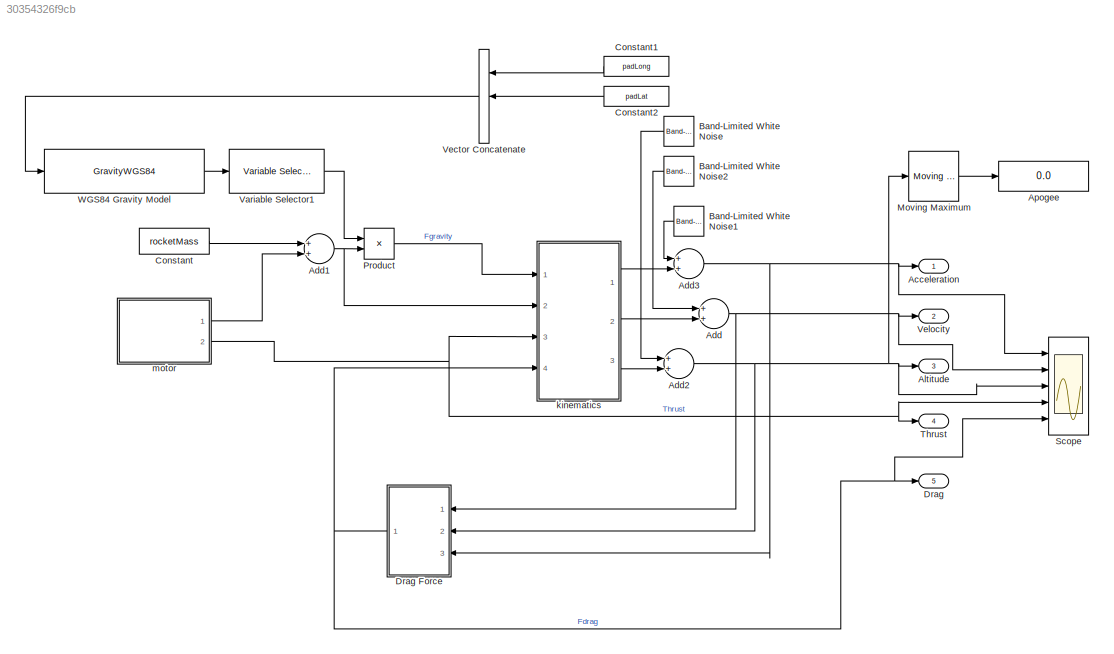
MODEL slx_30354326f9cb
KIND model
CONFIG AbsTol = auto
CONFIG EnableMultiTasking = off
CONFIG FixedStep = .0001
CONFIG MaxStep = auto
CONFIG MinStep = auto
CONFIG RelTol = 1e-3
CONFIG SampleTimeConstraint = Unconstrained
CONFIG Solver = ode4
CONFIG SolverName = ode4
CONFIG StartTime = 0.0
CONFIG StopTime = 20
BLOCK [Outport] Acceleration
  IconDisplay = Port number
BLOCK [Sum] Add
  InputSameDT = off
  OutDataTypeStr = Inherit: Inherit via internal rule
  Ports = [2, 1]
  SaturateOnIntegerOverflow = off
BLOCK [Sum] Add1
  InputSameDT = off
  OutDataTypeStr = Inherit: Inherit via internal rule
  Ports = [2, 1]
  SaturateOnIntegerOverflow = off
BLOCK [Sum] Add2
  InputSameDT = off
  OutDataTypeStr = Inherit: Inherit via internal rule
  Ports = [2, 1]
  SaturateOnIntegerOverflow = off
BLOCK [Sum] Add3
  InputSameDT = off
  OutDataTypeStr = Inherit: Inherit via internal rule
  Ports = [2, 1]
  SaturateOnIntegerOverflow = off
BLOCK [Outport] Altitude
  IconDisplay = Port number
  Port = 3
BLOCK [Display] Apogee
  Decimation = 1
  Format = long
  Ports = [1]
BLOCK [Reference] Band-Limited White Noise  REF=simulink/Sources/Band-Limited
White Noise
  Ports = [0, 1]
  SourceBlock = simulink/Sources/Band-Limited\nWhite Noise
  SourceProductBaseCode = SL
  SourceProductName = Simulink
  SourceType = Band-Limited White Noise.
BLOCK [Reference] Band-Limited White Noise1  REF=simulink/Sources/Band-Limited
White Noise
  Ports = [0, 1]
  SourceBlock = simulink/Sources/Band-Limited\nWhite Noise
  SourceProductBaseCode = SL
  SourceProductName = Simulink
  SourceType = Band-Limited White Noise.
BLOCK [Reference] Band-Limited White Noise2  REF=simulink/Sources/Band-Limited
White Noise
  Ports = [0, 1]
  SourceBlock = simulink/Sources/Band-Limited\nWhite Noise
  SourceProductBaseCode = SL
  SourceProductName = Simulink
  SourceType = Band-Limited White Noise.
BLOCK [Constant] Constant
  Value = rocketMass
BLOCK [Constant] Constant1
  Value = padLong
BLOCK [Constant] Constant2
  Value = padLat
BLOCK [Outport] Drag
  IconDisplay = Port number
  Port = 5
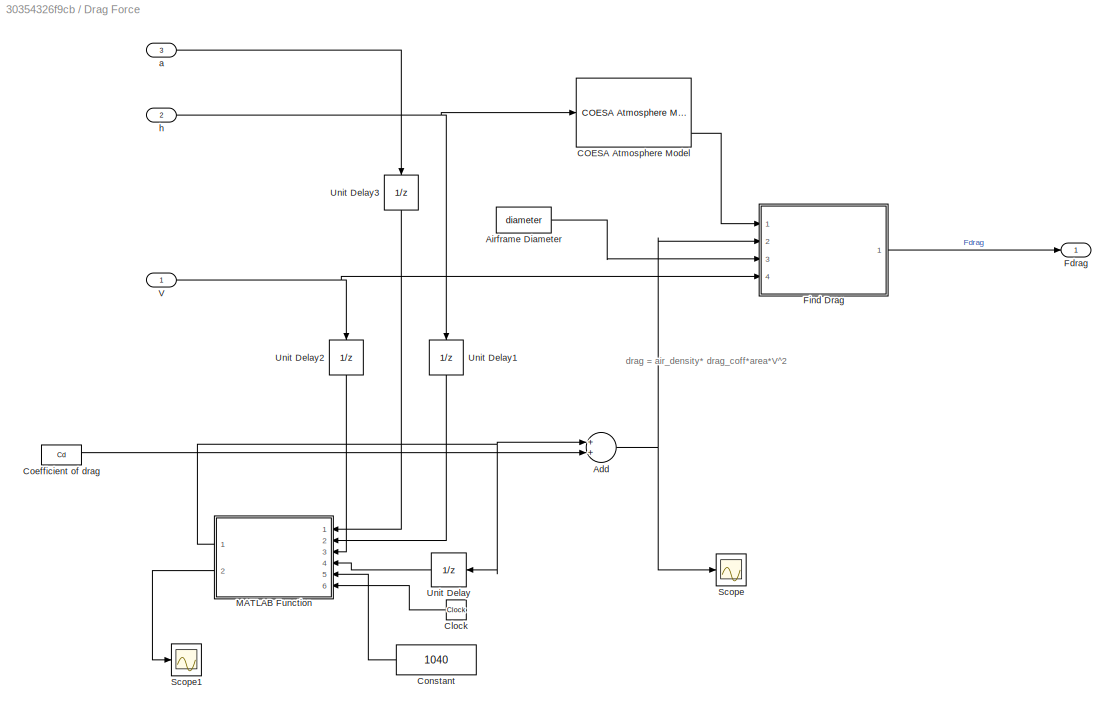
BLOCK [SubSystem] Drag Force
  Ports = [3, 1]
  RequestExecContextInheritance = off
BLOCK [Sum] Drag Force/Add
  InputSameDT = off
  OutDataTypeStr = Inherit: Inherit via internal rule
  Ports = [2, 1]
  SaturateOnIntegerOverflow = off
BLOCK [Constant] Drag Force/Airframe Diameter
  Value = diameter
BLOCK [Reference] Drag Force/COESA Atmosphere Model  REF=aerolibatmos2/COESA Atmosphere Model
  Ports = [1, 4]
  SourceBlock = aerolibatmos2/COESA Atmosphere Model
  SourceProductBaseCode = AE
  SourceProductName = Aerospace Blockset
  SourceType = Atmosphere Model
BLOCK [Clock] Drag Force/Clock
BLOCK [Constant] Drag Force/Coefficient of drag
  Value = Cd
BLOCK [Constant] Drag Force/Constant
  Value = 1040
BLOCK [Outport] Drag Force/Fdrag
  IconDisplay = Port number
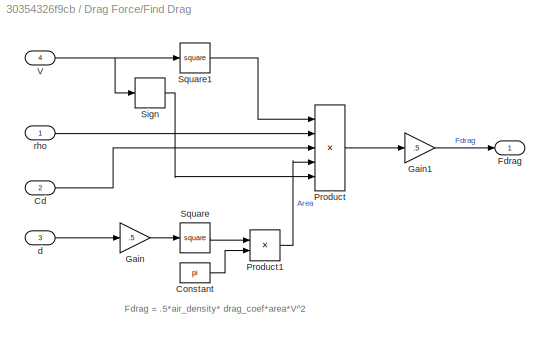
BLOCK [SubSystem] Drag Force/Find Drag
  Ports = [4, 1]
  RequestExecContextInheritance = off
BLOCK [Inport] Drag Force/Find Drag/Cd
  IconDisplay = Port number
  Port = 2
BLOCK [Constant] Drag Force/Find Drag/Constant
  Value = pi
BLOCK [Outport] Drag Force/Find Drag/Fdrag
  IconDisplay = Port number
BLOCK [Gain] Drag Force/Find Drag/Gain
  Gain = .5
  OutDataTypeStr = Inherit: Inherit via internal rule
  ParamDataTypeStr = Inherit: Inherit via internal rule
  SaturateOnIntegerOverflow = off
BLOCK [Gain] Drag Force/Find Drag/Gain1
  Gain = .5
  OutDataTypeStr = Inherit: Inherit via internal rule
  ParamDataTypeStr = Inherit: Inherit via internal rule
  SaturateOnIntegerOverflow = off
BLOCK [Product] Drag Force/Find Drag/Product
  InputSameDT = off
  Inputs = 5
  OutDataTypeStr = Inherit: Inherit via internal rule
  Ports = [5, 1]
  RndMeth = Floor
  SaturateOnIntegerOverflow = off
BLOCK [Product] Drag Force/Find Drag/Product1
  InputSameDT = off
  OutDataTypeStr = Inherit: Inherit via internal rule
  Ports = [2, 1]
  RndMeth = Floor
  SaturateOnIntegerOverflow = off
BLOCK [Signum] Drag Force/Find Drag/Sign
BLOCK [Math] Drag Force/Find Drag/Square
  Operator = square
  Ports = [1, 1]
BLOCK [Math] Drag Force/Find Drag/Square1
  Operator = square
  Ports = [1, 1]
BLOCK [Inport] Drag Force/Find Drag/V
  IconDisplay = Port number
  Port = 4
BLOCK [Inport] Drag Force/Find Drag/d
  IconDisplay = Port number
  Port = 3
BLOCK [Inport] Drag Force/Find Drag/rho
  IconDisplay = Port number
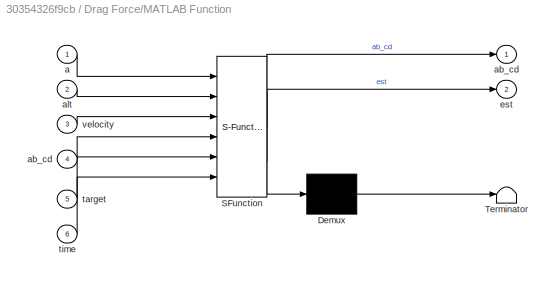
BLOCK [SubSystem] Drag Force/MATLAB Function
  ErrorFcn = Stateflow.Translate.translate
  PermitHierarchicalResolution = ExplicitOnly
  Ports = [6, 2]
  RequestExecContextInheritance = off
  SFBlockType = MATLAB Function
  TreatAsAtomicUnit = on
BLOCK [Demux] Drag Force/MATLAB Function/ Demux 
  Outputs = 1
  Ports = [1, 1]
BLOCK [S-Function] Drag Force/MATLAB Function/ SFunction 
  EnableBusSupport = on
  FunctionName = sf_sfun
  PortCounts = [6 3]
  Ports = [6, 3]
  SFcnIsStateOwnerBlock = off
  SFunctionDeploymentMode = off
  Tag = Stateflow S-Function launch_sim 2
BLOCK [Terminator] Drag Force/MATLAB Function/ Terminator 
BLOCK [Inport] Drag Force/MATLAB Function/a
  IconDisplay = Port number
BLOCK [Outport] Drag Force/MATLAB Function/ab_cd
  IconDisplay = Port number
BLOCK [Inport] Drag Force/MATLAB Function/ab_cd 
  IconDisplay = Port number
  Port = 4
BLOCK [Inport] Drag Force/MATLAB Function/alt
  IconDisplay = Port number
  Port = 2
BLOCK [Outport] Drag Force/MATLAB Function/est
  IconDisplay = Port number
  Port = 2
BLOCK [Inport] Drag Force/MATLAB Function/target
  IconDisplay = Port number
  Port = 5
BLOCK [Inport] Drag Force/MATLAB Function/time
  IconDisplay = Port number
  Port = 6
BLOCK [Inport] Drag Force/MATLAB Function/velocity
  IconDisplay = Port number
  Port = 3
BLOCK [Scope] Drag Force/Scope
  Floating = off
  NumInputPorts = 1
  Ports = [1]
  ScopeSpecificationString = Simulink.scopes.TimeScopeBlockCfg('CurrentConfiguration', extmgr.ConfigurationSet(extmgr.Configuration('Core','General UI',true),extmgr.Configuration('Core','Source UI',true),extmgr.Configuration('Sources','WiredSimulink',true,'DataLoggingVariableName','ScopeData1'),extmgr.Configuration('Visuals','Time Domain',true,'SerializedDisplays',{struct('MinYLimReal','0.3175','MaxYLimReal','2.1925','YLabelR...<+1352ch>
BLOCK [Scope] Drag Force/Scope1
  Floating = off
  NumInputPorts = 1
  Ports = [1]
  ScopeSpecificationString = Simulink.scopes.TimeScopeBlockCfg('CurrentConfiguration', extmgr.ConfigurationSet(extmgr.Configuration('Core','General UI',true),extmgr.Configuration('Core','Source UI',true),extmgr.Configuration('Sources','WiredSimulink',true,'DataLoggingVariableName','ScopeData2'),extmgr.Configuration('Visuals','Time Domain',true,'SerializedDisplays',{struct('MinYLimReal','-384.18546','MaxYLimReal','1580.44261',...<+1466ch>
BLOCK [UnitDelay] Drag Force/Unit Delay
  HasFrameUpgradeWarning = on
  SampleTime = -1
BLOCK [UnitDelay] Drag Force/Unit Delay1
  HasFrameUpgradeWarning = on
  SampleTime = -1
BLOCK [UnitDelay] Drag Force/Unit Delay2
  HasFrameUpgradeWarning = on
  SampleTime = -1
BLOCK [UnitDelay] Drag Force/Unit Delay3
  HasFrameUpgradeWarning = on
  SampleTime = -1
BLOCK [Inport] Drag Force/V
  IconDisplay = Port number
BLOCK [Inport] Drag Force/a
  IconDisplay = Port number
  Port = 3
BLOCK [Inport] Drag Force/h
  IconDisplay = Port number
  Port = 2
BLOCK [Reference] Moving Maximum  REF=dspstat3/Moving
Maximum
  Ports = [1, 1]
  SourceBlock = dspstat3/Moving\nMaximum
  SourceProductBaseCode = DS
  SourceProductName = DSP System Toolbox
  SourceType = dsp.MovingMaximum
BLOCK [Product] Product
  InputSameDT = off
  OutDataTypeStr = Inherit: Inherit via internal rule
  Ports = [2, 1]
  RndMeth = Floor
  SaturateOnIntegerOverflow = off
BLOCK [Scope] Scope
  Floating = off
  NumInputPorts = 5
  Ports = [5]
  ScopeSpecificationString = Simulink.scopes.TimeScopeBlockCfg('CurrentConfiguration', extmgr.ConfigurationSet(extmgr.Configuration('Core','General UI',true),extmgr.Configuration('Core','Source UI',true),extmgr.Configuration('Sources','WiredSimulink',true),extmgr.Configuration('Visuals','Time Domain',true,'SerializedDisplays',{struct('MinYLimReal','-262.05351','MaxYLimReal','1224.30464','YLabelReal','','MinYLimMag',' 0.00000'...<+1589ch>
BLOCK [Outport] Thrust
  IconDisplay = Port number
  Port = 4
BLOCK [Reference] Variable Selector1  REF=dspindex/Variable
Selector
  Ports = [1, 1]
  SourceBlock = dspindex/Variable\nSelector
  SourceProductBaseCode = DS
  SourceProductName = DSP System Toolbox
  SourceType = Variable Selector
BLOCK [Concatenate] Vector Concatenate
  NumInputs = 3
  Ports = [3, 1]
BLOCK [Outport] Velocity
  IconDisplay = Port number
  Port = 2
BLOCK [GravityWGS84] WGS84 Gravity Model  
  Ports = [1, 1]
  no_centrifugal = off
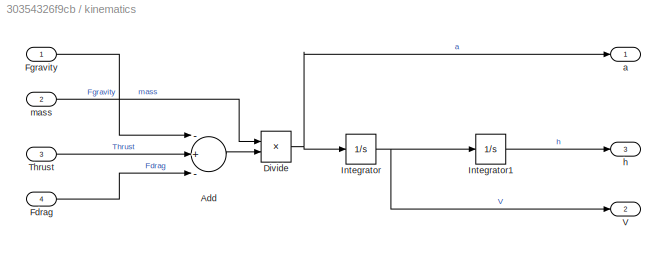
BLOCK [SubSystem] kinematics
  Ports = [4, 3]
  RequestExecContextInheritance = off
BLOCK [Sum] kinematics/Add
  InputSameDT = off
  Inputs = -+-
  OutDataTypeStr = Inherit: Inherit via internal rule
  Ports = [3, 1]
  SaturateOnIntegerOverflow = off
BLOCK [Product] kinematics/Divide
  InputSameDT = off
  Inputs = /*
  OutDataTypeStr = Inherit: Inherit via internal rule
  Ports = [2, 1]
  RndMeth = Floor
  SaturateOnIntegerOverflow = off
BLOCK [Inport] kinematics/Fdrag
  IconDisplay = Port number
  Port = 4
BLOCK [Inport] kinematics/Fgravity
  IconDisplay = Port number
BLOCK [Integrator] kinematics/Integrator
  Ports = [1, 1]
BLOCK [Integrator] kinematics/Integrator1
  Ports = [1, 1]
BLOCK [Inport] kinematics/Thrust 
  IconDisplay = Port number
  Port = 3
BLOCK [Outport] kinematics/V
  IconDisplay = Port number
  Port = 2
BLOCK [Outport] kinematics/a
  IconDisplay = Port number
BLOCK [Outport] kinematics/h
  IconDisplay = Port number
  Port = 3
BLOCK [Inport] kinematics/mass
  IconDisplay = Port number
  Port = 2
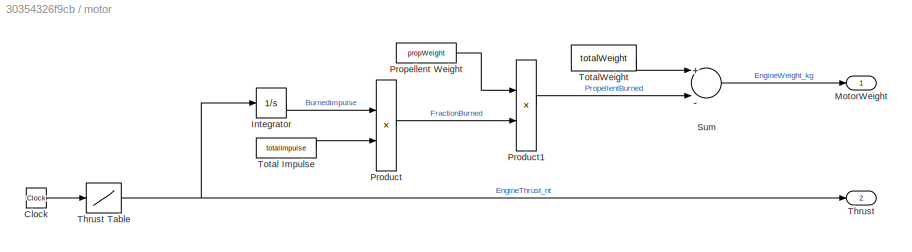
BLOCK [SubSystem] motor
  Ports = [0, 2]
  RequestExecContextInheritance = off
BLOCK [Clock] motor/Clock
BLOCK [Integrator] motor/Integrator
  Ports = [1, 1]
BLOCK [Outport] motor/MotorWeight
  IconDisplay = Port number
BLOCK [Product] motor/Product
  Inputs = */
  Ports = [2, 1]
BLOCK [Product] motor/Product1
  Ports = [2, 1]
BLOCK [Constant] motor/Propellent Weight
  Value = propWeight
BLOCK [Sum] motor/Sum
  Inputs = +|-
  Ports = [2, 1]
BLOCK [Outport] motor/Thrust
  IconDisplay = Port number
  Port = 2
BLOCK [Lookup] motor/Thrust Table
  InputValues = thrustTime
  LookUpMeth = Interpolation-Use End Values
  Table = thrust
BLOCK [Constant] motor/Total Impulse
  Value = totalImpulse
BLOCK [Constant] motor/TotalWeight
  Value = totalWeight
ANNOTATION Drag Force: drag = air_density* drag_coff*area*V^2
ANNOTATION Drag Force/Find Drag: Fdrag = .5*air_density* drag_coef*area*V^2
NET Add1:1 -> Product:2, kinematics:2
NET Add2:1 -> Altitude:1, Drag Force:2, Moving Maximum:1, Scope:3
NET Add3:1 -> Acceleration:1, Drag Force:3, Scope:1
NET Add:1 -> Drag Force:1, Scope:2, Velocity:1
LINE Band-Limited White Noise1:1 -> Add3:1
LINE Band-Limited White Noise2:1 -> Add:1
LINE Band-Limited White Noise:1 -> Add2:1
LINE Constant1:1 -> Vector Concatenate:1
LINE Constant2:1 -> Vector Concatenate:2
LINE Constant:1 -> Add1:1
NET Drag Force/Add:1 -> Drag Force/Find Drag:2, Drag Force/Scope:1
LINE Drag Force/Airframe Diameter:1 -> Drag Force/Find Drag:3
LINE Drag Force/COESA Atmosphere Model:4 -> Drag Force/Find Drag:1
LINE Drag Force/Clock:1 -> Drag Force/MATLAB Function:6
LINE Drag Force/Coefficient of drag:1 -> Drag Force/Add:2
LINE Drag Force/Constant:1 -> Drag Force/MATLAB Function:5
LINE Drag Force/Find Drag/Cd:1 -> Drag Force/Find Drag/Product:3
LINE Drag Force/Find Drag/Constant:1 -> Drag Force/Find Drag/Product1:2
LINE Drag Force/Find Drag/Gain1:1 -> Drag Force/Find Drag/Fdrag:1
LINE Drag Force/Find Drag/Gain:1 -> Drag Force/Find Drag/Square:1
LINE Drag Force/Find Drag/Product1:1 -> Drag Force/Find Drag/Product:4
LINE Drag Force/Find Drag/Product:1 -> Drag Force/Find Drag/Gain1:1
LINE Drag Force/Find Drag/Sign:1 -> Drag Force/Find Drag/Product:5
LINE Drag Force/Find Drag/Square1:1 -> Drag Force/Find Drag/Product:1
LINE Drag Force/Find Drag/Square:1 -> Drag Force/Find Drag/Product1:1
NET Drag Force/Find Drag/V:1 -> Drag Force/Find Drag/Sign:1, Drag Force/Find Drag/Square1:1
LINE Drag Force/Find Drag/d:1 -> Drag Force/Find Drag/Gain:1
LINE Drag Force/Find Drag/rho:1 -> Drag Force/Find Drag/Product:2
LINE Drag Force/Find Drag:1 -> Drag Force/Fdrag:1
NET Drag Force/MATLAB Function:1 -> Drag Force/Add:1, Drag Force/Unit Delay:1
LINE Drag Force/MATLAB Function:2 -> Drag Force/Scope1:1
LINE Drag Force/Unit Delay1:1 -> Drag Force/MATLAB Function:2
LINE Drag Force/Unit Delay2:1 -> Drag Force/MATLAB Function:3
LINE Drag Force/Unit Delay3:1 -> Drag Force/MATLAB Function:1
LINE Drag Force/Unit Delay:1 -> Drag Force/MATLAB Function:4
NET Drag Force/V:1 -> Drag Force/Find Drag:4, Drag Force/Unit Delay2:1
LINE Drag Force/a:1 -> Drag Force/Unit Delay3:1
NET Drag Force/h:1 -> Drag Force/COESA Atmosphere Model:1, Drag Force/Unit Delay1:1
NET Drag Force:1 -> Drag:1, Scope:5, kinematics:4
LINE Moving Maximum:1 -> Apogee:1
LINE Product:1 -> kinematics:1
LINE Variable Selector1:1 -> Product:1
LINE Vector Concatenate:1 -> WGS84 Gravity Model  :1
LINE WGS84 Gravity Model  :1 -> Variable Selector1:1
LINE kinematics/Add:1 -> kinematics/Divide:2
NET kinematics/Divide:1 -> kinematics/Integrator:1, kinematics/a:1
LINE kinematics/Fdrag:1 -> kinematics/Add:3
LINE kinematics/Fgravity:1 -> kinematics/Add:1
LINE kinematics/Integrator1:1 -> kinematics/h:1
NET kinematics/Integrator:1 -> kinematics/Integrator1:1, kinematics/V:1
LINE kinematics/Thrust :1 -> kinematics/Add:2
LINE kinematics/mass:1 -> kinematics/Divide:1
LINE kinematics:1 -> Add3:2
LINE kinematics:2 -> Add:2
LINE kinematics:3 -> Add2:2
LINE motor/Clock:1 -> motor/Thrust Table:1
LINE motor/Integrator:1 -> motor/Product:1
LINE motor/Product1:1 -> motor/Sum:2
LINE motor/Product:1 -> motor/Product1:2
LINE motor/Propellent Weight:1 -> motor/Product1:1
LINE motor/Sum:1 -> motor/MotorWeight:1
NET motor/Thrust Table:1 -> motor/Integrator:1, motor/Thrust:1
LINE motor/Total Impulse:1 -> motor/Product:2
LINE motor/TotalWeight:1 -> motor/Sum:1
LINE motor:1 -> Add1:2
NET motor:2 -> Scope:4, Thrust:1, kinematics:3
note: NET lines group one-source signal fan-out (src -> all destinations, sorted); 1:1 wires keep LINE
CHART Drag Force/MATLAB Function states=1 transitions=1
  STATE_LABEL 'eML_blk_kernel()'
  STATE_LABEL 'SCRIPT:\nfunction [ab_cd, est]  = airbrake( a, alt, velocity, ab_cd, target, time)\n\nest = alt + (velocity.^2)/(2*-a);\n\nif (est) > target && time > 6\n    if (ab_cd < 1.5)\n        ab_cd = ab_cd + .02;\n    end\nelseif time > 6 && est < target\n    if (ab_cd >= .2)\n        \n        ab_cd = ab_cd - .02;\n    end\nelse\n    ab_cd = 0;\nend\n'
